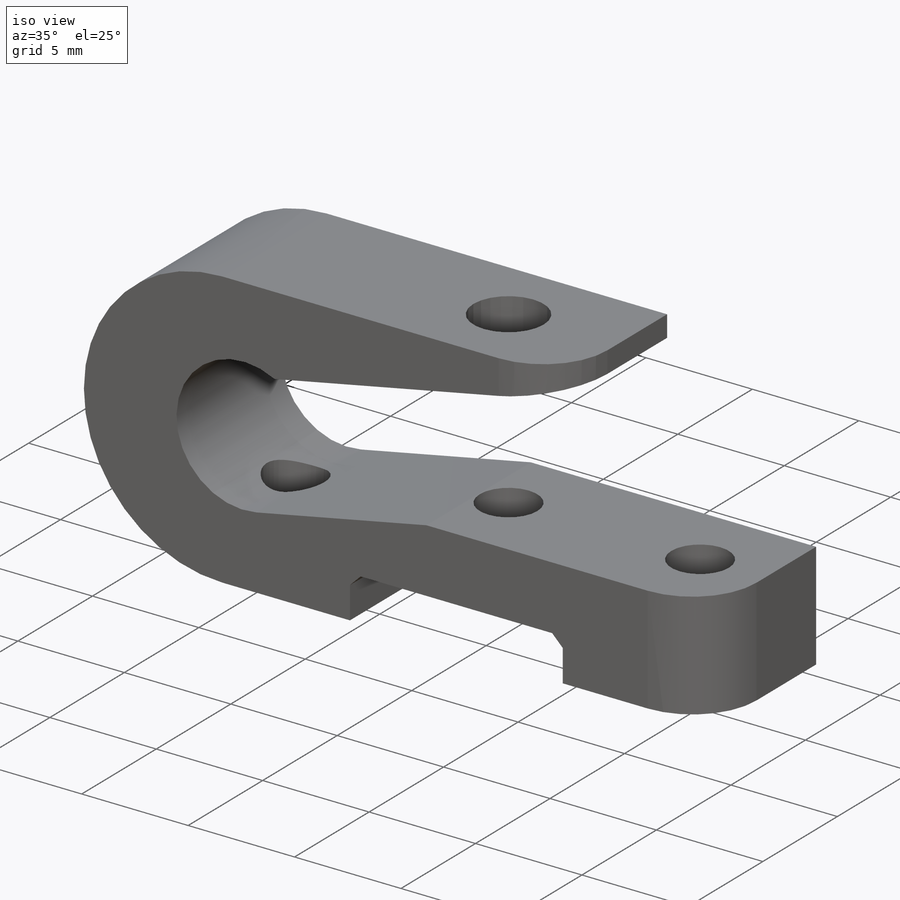
[diagram: iso view]
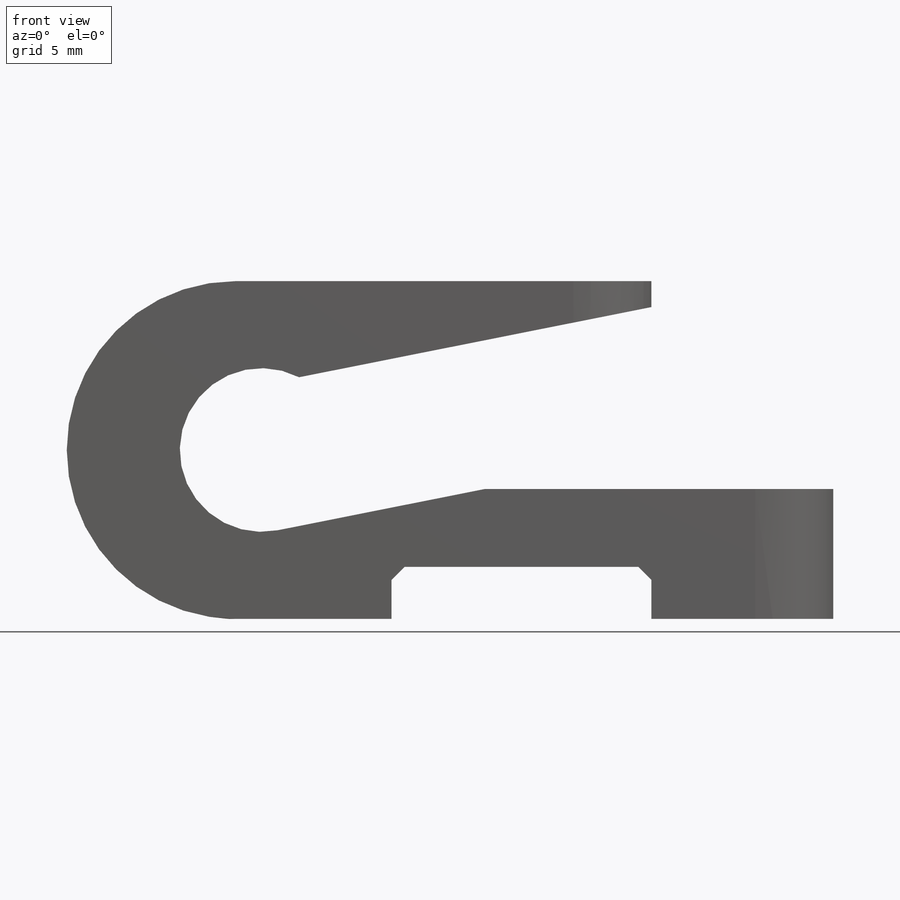
[diagram: front view]
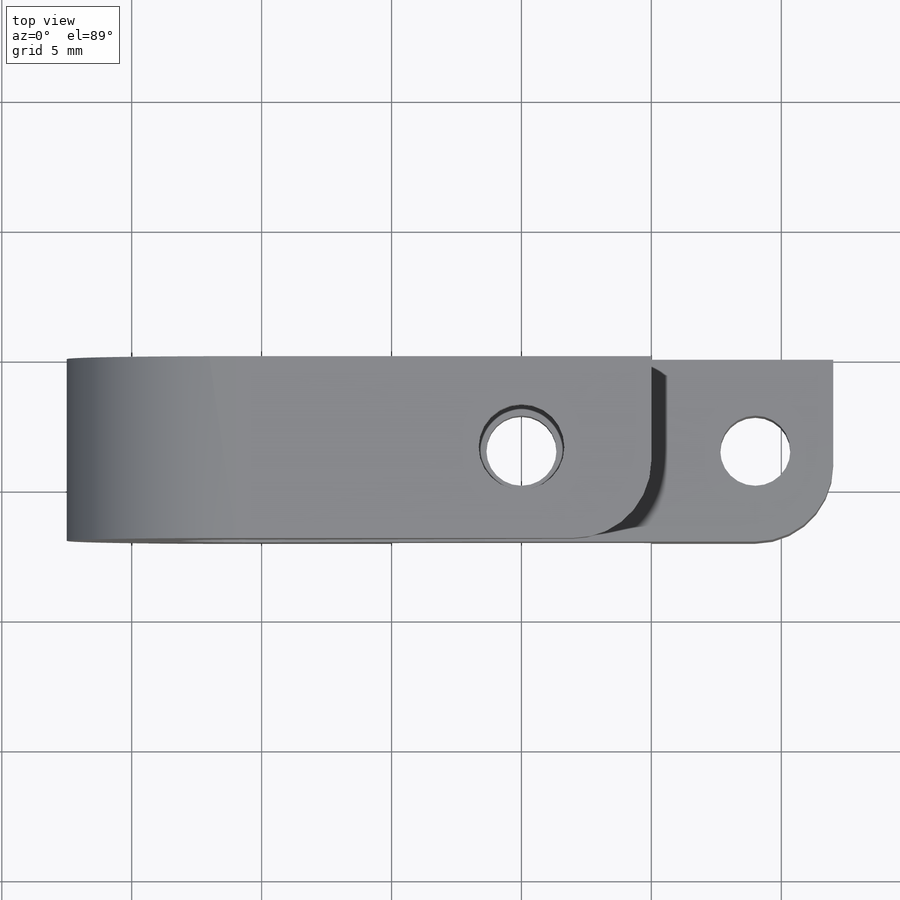
[diagram: top view]
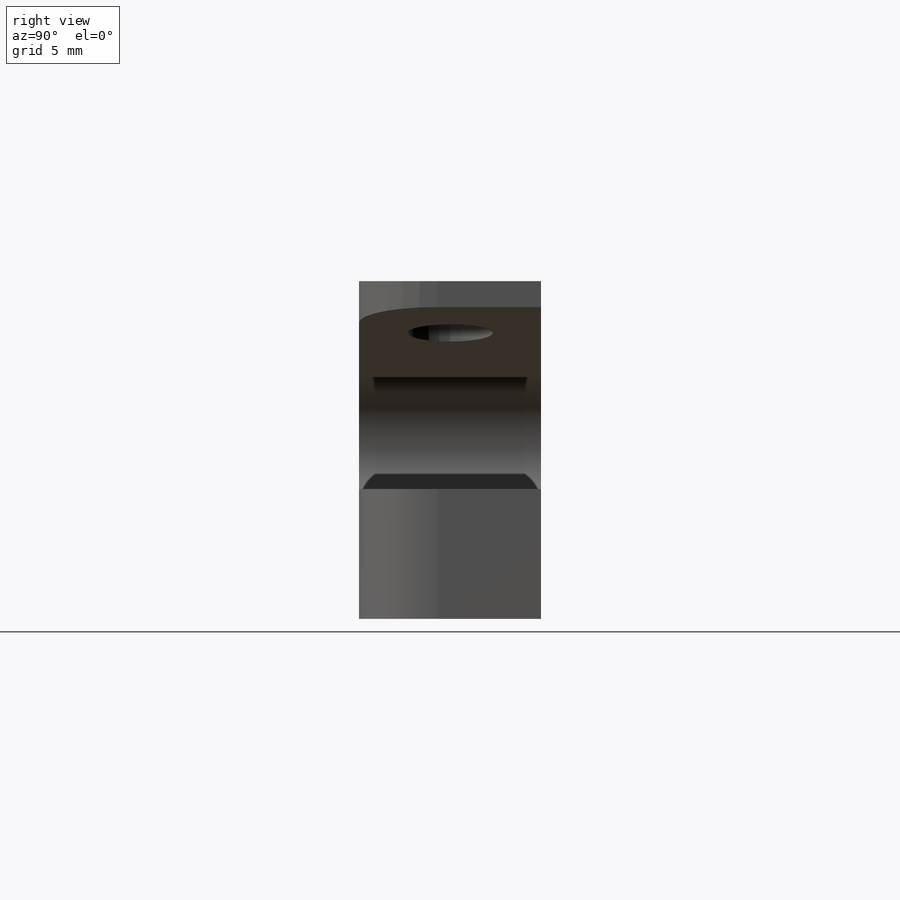
[diagram: right view]
SOLIDWORKS PART (.sldprt)
format: sldprt  version: not decoded by parser v0  size: 219,136 bytes
history: native  units: mm
features: sketch x3, cut_extrude x2, material x1, extrude x1, fillet x1, chamfer x1 (+16 scaffold rows collapsed)
feature tree (25):
  scaffold x16  (default folders/planes/origin — collapsed)
  material  "Material <not specified>"
  sketch  "Sketch1"  dims[c1.D1=3.15mm c1.D2=13.0mm c1.D3=1.0mm c1.D4=2.0mm c1.D5=22.0mm c1.D6=5.0mm c1.D7=10.0mm c1.D8=2.0mm c1.D9=1.0mm c2.D8=3.8mm c2.D9=5.0mm c3.D8=1.0mm c3.D10=2.8mm]
  extrude  "Boss-Extrude1"  Depth=7mm
  sketch  "Sketch2"  dims[D2=2.7mm D1=19.0mm D3=5.0mm D4=3.5mm]
  cut_extrude  "Cut-Extrude1"  [1 undecoded]
  sketch  "Sketch3"  dims[D1=3.3mm]
  cut_extrude  "Cut-Extrude2"  [1 undecoded]
  fillet  "Fillet1"  Radius=3mm
  chamfer  "Chamfer2"  Distance=0.5mm Angle=45deg
decode coverage: 6 of 8 modeling features carry decoded parameters
note: 2 parameter values undecoded
note: suppression state not decoded; provenance and decode notes live in map.json
